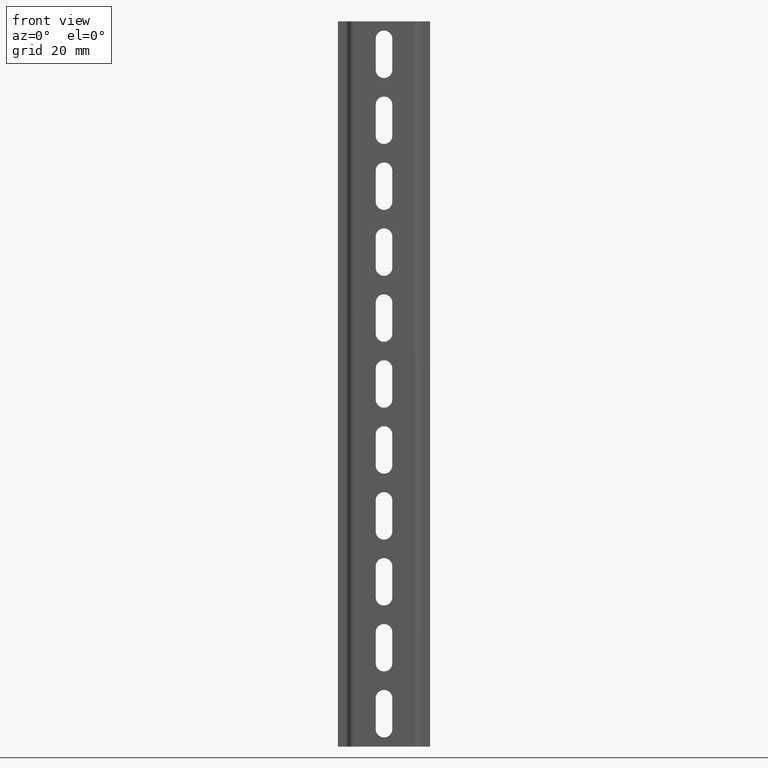
[diagram: clean part render]
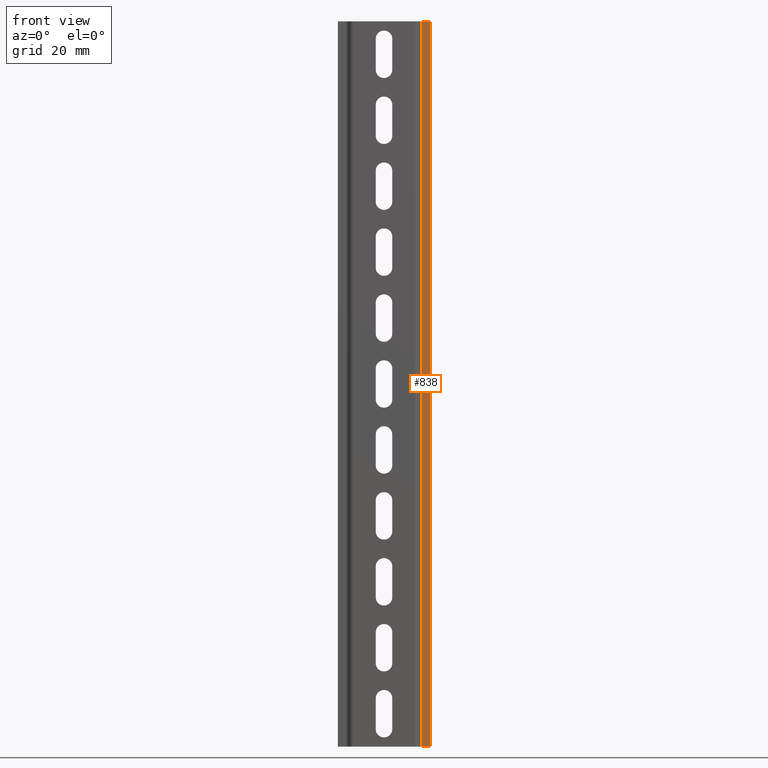
[diagram: same view with one face highlighted and labeled with its STEP entity id]
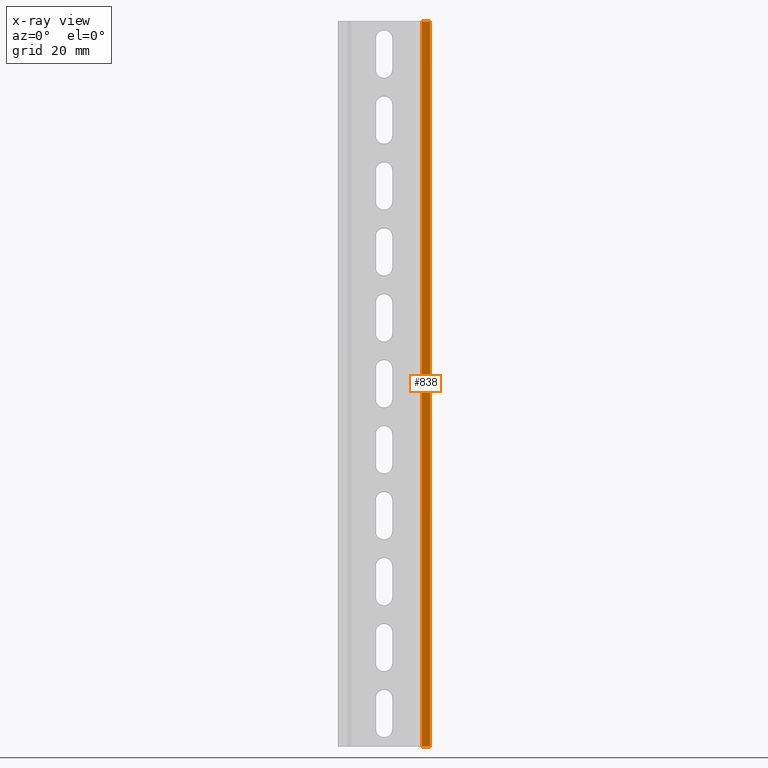
[diagram: x-ray of the same camera — body ghosted, the highlighted face saturated]
A machine part, front view. The second image highlights one B-rep face of the part: STEP entity #838.
The next image is the same camera in x-ray: the body ghosted, the highlighted face saturated — about 0% of this face is hidden behind the body in this view.
In plain terms, the highlighted planar face has unit normal (0, 1, -0).
Its self-contained STEP definition (entity closure, byte-faithful):
#80 = VECTOR ( 'NONE', #1227, 1000.000000000000000 ) ;
#120 = LINE ( 'NONE', #1365, #407 ) ;
#139 = EDGE_LOOP ( 'NONE', ( #371, #992, #672, #1474 ) ) ;
#256 = EDGE_CURVE ( 'NONE', #1814, #1580, #1893, .T. ) ;
#274 = CARTESIAN_POINT ( 'NONE',  ( 27.79999999999999716, 6.500000000000000000, -2.886579864024999558E-15 ) ) ;
#362 = VECTOR ( 'NONE', #490, 1000.000000000000000 ) ;
#371 = ORIENTED_EDGE ( 'NONE', *, *, #480, .T. ) ;
#407 = VECTOR ( 'NONE', #1909, 1000.000000000000000 ) ;
#435 = DIRECTION ( 'NONE',  ( 1.000000000000000000, 0.000000000000000000, 0.000000000000000000 ) ) ;
#480 = EDGE_CURVE ( 'NONE', #2025, #1487, #120, .T. ) ;
#490 = DIRECTION ( 'NONE',  ( 0.000000000000000000, 4.440892098500999885E-16, 1.000000000000000000 ) ) ;
#672 = ORIENTED_EDGE ( 'NONE', *, *, #256, .F. ) ;
#832 = EDGE_CURVE ( 'NONE', #1814, #2025, #1535, .T. ) ;
#838 = ADVANCED_FACE ( 'NONE', ( #1158 ), #1172, .F. ) ;
#973 = CARTESIAN_POINT ( 'NONE',  ( 27.00000000000000000, 6.500000000000000000, -2.886579864024999558E-15 ) ) ;
#992 = ORIENTED_EDGE ( 'NONE', *, *, #1955, .F. ) ;
#1054 = AXIS2_PLACEMENT_3D ( 'NONE', #2210, #1880, #1490 ) ;
#1158 = FACE_OUTER_BOUND ( 'NONE', #139, .T. ) ;
#1172 = PLANE ( 'NONE',  #1054 ) ;
#1227 = DIRECTION ( 'NONE',  ( 1.000000000000000000, 0.000000000000000000, 0.000000000000000000 ) ) ;
#1365 = CARTESIAN_POINT ( 'NONE',  ( 31.00000000000000000, 6.500000000000000000, -2.886579864024999558E-15 ) ) ;
#1429 = CARTESIAN_POINT ( 'NONE',  ( 31.00000000000000000, 6.500000000000000000, -2.886579864024999558E-15 ) ) ;
#1474 = ORIENTED_EDGE ( 'NONE', *, *, #832, .T. ) ;
#1487 = VERTEX_POINT ( 'NONE', #1954 ) ;
#1490 = DIRECTION ( 'NONE',  ( 0.000000000000000000, -4.440892098500999885E-16, -1.000000000000000000 ) ) ;
#1535 = LINE ( 'NONE', #973, #2170 ) ;
#1567 = LINE ( 'NONE', #2277, #80 ) ;
#1580 = VERTEX_POINT ( 'NONE', #1795 ) ;
#1795 = CARTESIAN_POINT ( 'NONE',  ( 27.79999999999999716, 6.500000000000000000, 275.0000000000000000 ) ) ;
#1814 = VERTEX_POINT ( 'NONE', #2219 ) ;
#1880 = DIRECTION ( 'NONE',  ( 0.000000000000000000, 1.000000000000000000, -4.440892098500999885E-16 ) ) ;
#1893 = LINE ( 'NONE', #274, #362 ) ;
#1909 = DIRECTION ( 'NONE',  ( 0.000000000000000000, 4.440892098500999885E-16, 1.000000000000000000 ) ) ;
#1954 = CARTESIAN_POINT ( 'NONE',  ( 31.00000000000000000, 6.500000000000000000, 275.0000000000000000 ) ) ;
#1955 = EDGE_CURVE ( 'NONE', #1580, #1487, #1567, .T. ) ;
#2025 = VERTEX_POINT ( 'NONE', #1429 ) ;
#2170 = VECTOR ( 'NONE', #435, 1000.000000000000000 ) ;
#2210 = CARTESIAN_POINT ( 'NONE',  ( 27.00000000000000000, 6.500000000000000000, -2.886579864024999558E-15 ) ) ;
#2219 = CARTESIAN_POINT ( 'NONE',  ( 27.79999999999999716, 6.500000000000000000, -2.886579864024999558E-15 ) ) ;
#2277 = CARTESIAN_POINT ( 'NONE',  ( 27.00000000000000000, 6.500000000000000000, 275.0000000000000000 ) ) ;